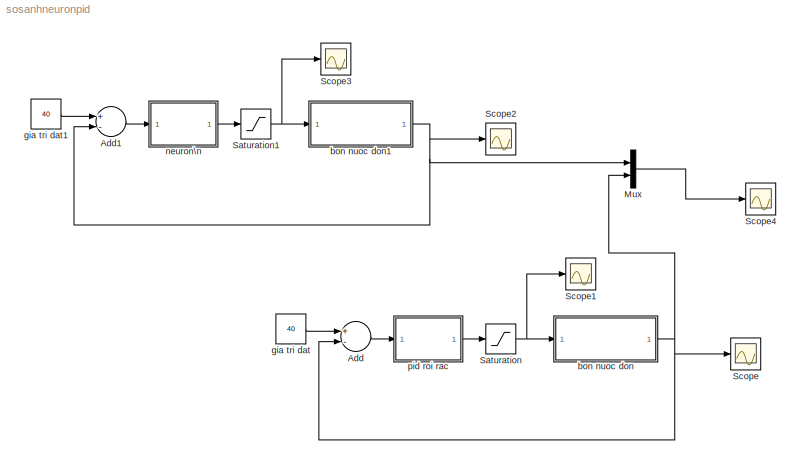
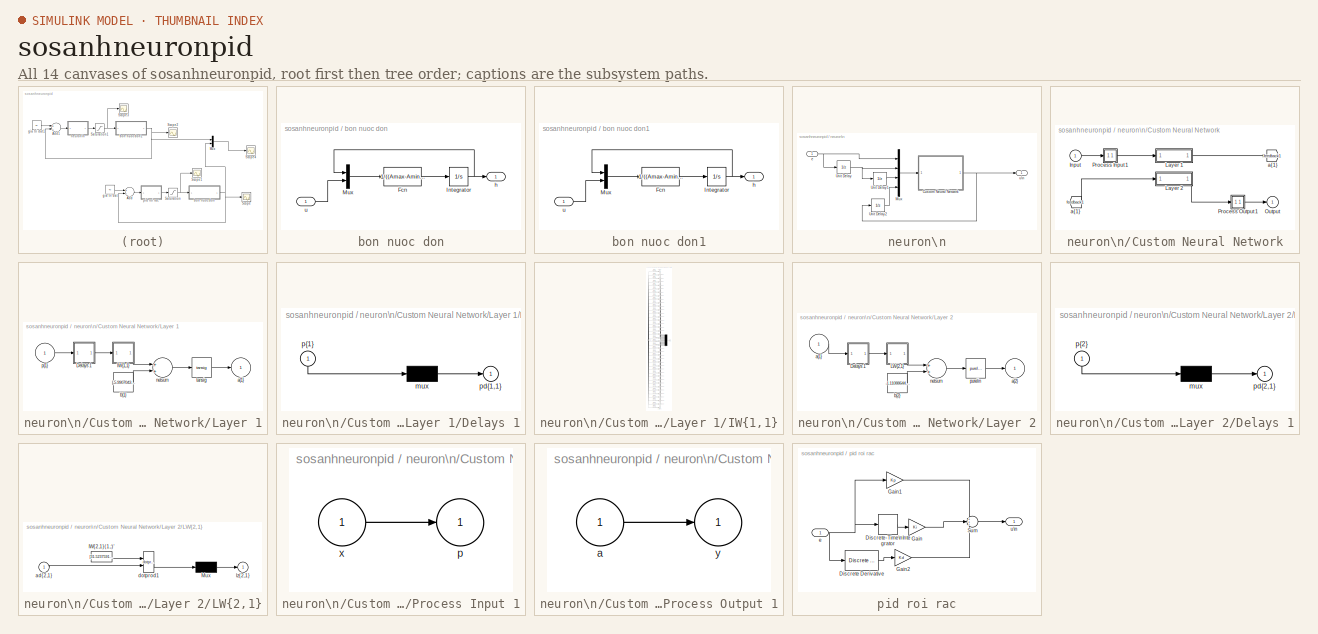
[diagram: thumbnail index - all 14 canvases of the model, root first then tree order]
MODEL sosanhneuronpid
KIND model
BLOCK [Sum] Add
  InputSameDT = off
  Inputs = +-
  OutDataTypeStr = Inherit: Inherit via internal rule
  Ports = [2, 1]
  SID = 124
  SaturateOnIntegerOverflow = off
BLOCK [Sum] Add1
  InputSameDT = off
  Inputs = +-
  OutDataTypeStr = Inherit: Inherit via internal rule
  Ports = [2, 1]
  SID = 145
  SaturateOnIntegerOverflow = off
BLOCK [Mux] Mux
  DisplayOption = bar
  Inputs = 2
  Ports = [2, 1]
  SID = 169
BLOCK [Saturate] Saturation
  InputPortMap = u0
  LowerLimit = 0
  Ports = [1, 1]
  SID = 125
  UpperLimit = 12
BLOCK [Saturate] Saturation1
  InputPortMap = u0
  LowerLimit = 0
  Ports = [1, 1]
  SID = 146
  UpperLimit = 12
BLOCK [Scope] Scope
  NumInputPorts = 1
  Ports = [1]
  SID = 126
  ScopeSpecificationString = Simulink.scopes.TimeScopeBlockCfg('CurrentConfiguration', extmgr.ConfigurationSet(extmgr.Configuration('Core','General UI',true),extmgr.Configuration('Core','Source UI',true),extmgr.Configuration('Sources','WiredSimulink',true,'DataLoggingVariableName','ScopeData2'),extmgr.Configuration('Visuals','Time Domain',true,'SerializedDisplays',{struct('MinYLimReal','6.25608','MaxYLimReal','43.69531','YLab...<+1400ch>
BLOCK [Scope] Scope1
  NumInputPorts = 1
  Ports = [1]
  SID = 127
  ScopeSpecificationString = Simulink.scopes.TimeScopeBlockCfg('CurrentConfiguration', extmgr.ConfigurationSet(extmgr.Configuration('Core','General UI',true),extmgr.Configuration('Core','Source UI',true),extmgr.Configuration('Sources','WiredSimulink',true,'DataLoggingVariableName','ScopeData1'),extmgr.Configuration('Visuals','Time Domain',true,'SerializedDisplays',{struct('MinYLimReal','-0.87011','MaxYLimReal','13.43001','YLa...<+1400ch>
BLOCK [Scope] Scope2
  NumInputPorts = 1
  Ports = [1]
  SID = 147
  ScopeSpecificationString = Simulink.scopes.TimeScopeBlockCfg('CurrentConfiguration', extmgr.ConfigurationSet(extmgr.Configuration('Core','General UI',true),extmgr.Configuration('Core','Source UI',true),extmgr.Configuration('Sources','WiredSimulink',true),extmgr.Configuration('Visuals','Time Domain',true,'SerializedDisplays',{struct('MinYLimReal','-4.97043','MaxYLimReal','44.73384','YLabelReal','','MinYLimMag','0.00000','Max...<+1364ch>
BLOCK [Scope] Scope3
  NumInputPorts = 1
  Ports = [1]
  SID = 148
  ScopeSpecificationString = Simulink.scopes.TimeScopeBlockCfg('CurrentConfiguration', extmgr.ConfigurationSet(extmgr.Configuration('Core','General UI',true),extmgr.Configuration('Core','Source UI',true),extmgr.Configuration('Sources','WiredSimulink',true,'DataLoggingVariableName','ScopeData3'),extmgr.Configuration('Visuals','Time Domain',true,'SerializedDisplays',{struct('MinYLimReal','-0.87011','MaxYLimReal','13.43001','YLa...<+1400ch>
BLOCK [Scope] Scope4
  NumInputPorts = 1
  Ports = [1]
  SID = 168
  ScopeSpecificationString = Simulink.scopes.TimeScopeBlockCfg('CurrentConfiguration', extmgr.ConfigurationSet(extmgr.Configuration('Core','General UI',true),extmgr.Configuration('Core','Source UI',true),extmgr.Configuration('Sources','WiredSimulink',true,'DataLoggingVariableName','ScopeData4'),extmgr.Configuration('Visuals','Time Domain',true,'SerializedDisplays',{struct('MinYLimReal','-4.99389','MaxYLimReal','44.94501','YLa...<+1418ch>
BLOCK [SubSystem] bon nuoc don
  Ports = [1, 1]
  RequestExecContextInheritance = off
  SID = 128
  Variant = off
BLOCK [Fcn] bon nuoc don/Fcn
  Expr = 1/((Amax-Amin)/hmax*u(1)+Amin)*(k*u(2)-CD*a*sqrt(2*981*u(1)))
  SID = 130
BLOCK [Integrator] bon nuoc don/Integrator
  InitialCondition = h_init
  Ports = [1, 1]
  SID = 131
BLOCK [Mux] bon nuoc don/Mux
  DisplayOption = bar
  Inputs = 2
  Ports = [2, 1]
  SID = 132
BLOCK [Outport] bon nuoc don/h
  IconDisplay = Port number
  SID = 133
BLOCK [Inport] bon nuoc don/u
  IconDisplay = Port number
  SID = 129
BLOCK [SubSystem] bon nuoc don1
  Ports = [1, 1]
  RequestExecContextInheritance = off
  SID = 149
  Variant = off
BLOCK [Fcn] bon nuoc don1/Fcn
  Expr = 1/((Amax-Amin)/hmax*u(1)+Amin)*(k*u(2)-CD*a*sqrt(2*981*u(1)))
  SID = 151
BLOCK [Integrator] bon nuoc don1/Integrator
  InitialCondition = h_init
  Ports = [1, 1]
  SID = 152
BLOCK [Mux] bon nuoc don1/Mux
  DisplayOption = bar
  Inputs = 2
  Ports = [2, 1]
  SID = 153
BLOCK [Outport] bon nuoc don1/h
  IconDisplay = Port number
  SID = 154
BLOCK [Inport] bon nuoc don1/u
  IconDisplay = Port number
  SID = 150
BLOCK [Constant] gia tri dat
  SID = 134
  Value = 40
BLOCK [Constant] gia tri dat1
  SID = 155
  Value = 40
BLOCK [SubSystem] neuron\n
  Ports = [1, 1]
  RequestExecContextInheritance = off
  SID = 156
  Variant = off
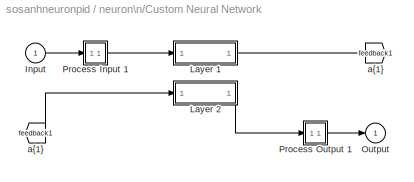
BLOCK [SubSystem] neuron\n/Custom Neural Network
  Ports = [1, 1]
  RequestExecContextInheritance = off
  SID = 291
  Variant = off
BLOCK [From] neuron\n/Custom Neural Network/ a{1} 
  GotoTag = feedback1
  SID = 293
BLOCK [Inport] neuron\n/Custom Neural Network/Input
  IconDisplay = Port number
  PortDimensions = 4
  SID = 292
  SampleTime = 0.1
BLOCK [SubSystem] neuron\n/Custom Neural Network/Layer 1
  Ports = [1, 1]
  RequestExecContextInheritance = off
  SID = 294
  Variant = off
BLOCK [SubSystem] neuron\n/Custom Neural Network/Layer 1/Delays 1
  Ports = [1, 1]
  RequestExecContextInheritance = off
  SID = 296
  Variant = off
BLOCK [Mux] neuron\n/Custom Neural Network/Layer 1/Delays 1/mux
  Inputs = 1
  Ports = [1, 1]
  SID = 298
BLOCK [Outport] neuron\n/Custom Neural Network/Layer 1/Delays 1/pd{1,1}
  IconDisplay = Port number
  SID = 299
BLOCK [Inport] neuron\n/Custom Neural Network/Layer 1/Delays 1/p{1}
  IconDisplay = Port number
  PortDimensions = 4
  SID = 297
  SampleTime = 0.1
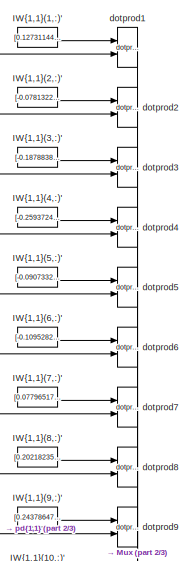
[diagram: neuron\n/Custom Neural Network/Layer 1/IW{1,1} - part 1/3, top center region]
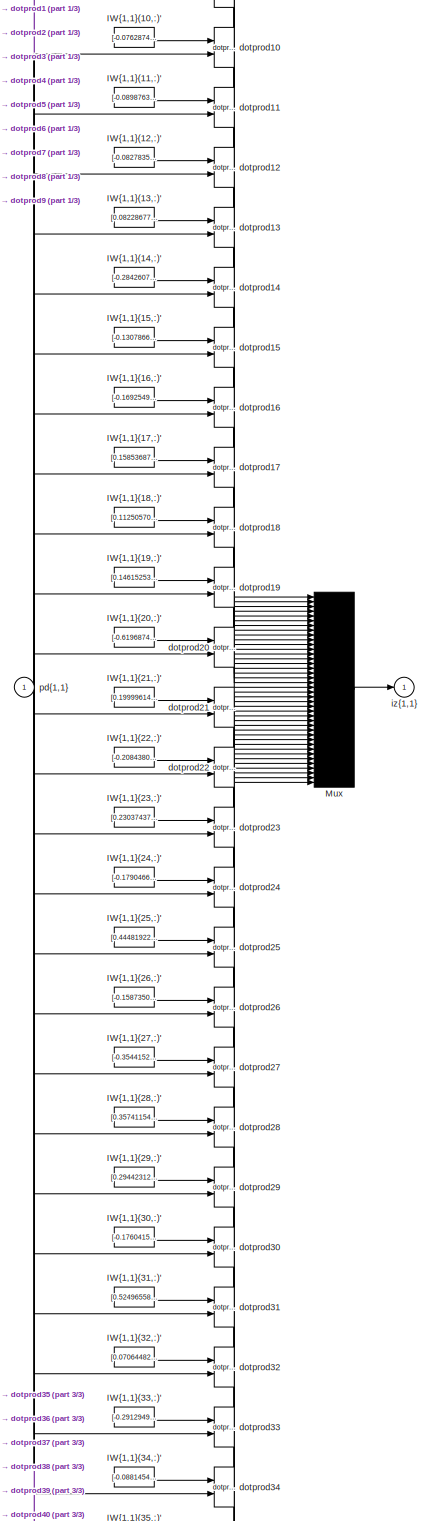
[diagram: neuron\n/Custom Neural Network/Layer 1/IW{1,1} - part 2/3, full width, middle band]
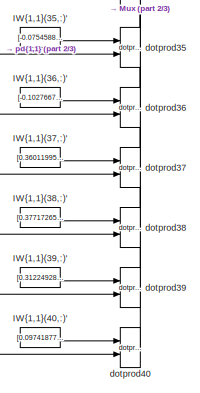
[diagram: neuron\n/Custom Neural Network/Layer 1/IW{1,1} - part 3/3, bottom center region]
BLOCK [SubSystem] neuron\n/Custom Neural Network/Layer 1/IW{1,1}
  Ports = [1, 1]
  RequestExecContextInheritance = off
  SID = 300
  Variant = off
BLOCK [Constant] neuron\n/Custom Neural Network/Layer 1/IW{1,1}/IW{1,1}(1,:)'
  SID = 302
  Value = [0.1273114426274164767693974908979726023972034454345703125;0.0003123724111336769588241624173718946622102521359920501708984375;0.00120134153832350304598464152405767890741117298603057861328125;-0.00101208542491713015219756410800755475065670907497406005859375]
BLOCK [Constant] neuron\n/Custom Neural Network/Layer 1/IW{1,1}/IW{1,1}(10,:)'
  SID = 303
  Value = [-0.07628744425891477443091304166955524124205112457275390625;0.0010549580932088021591186421943575624027289450168609619140625;-0.000686530404964672447305773506087689384003169834613800048828125;-0.00073994853950029820625899912300837968359701335430145263671875]
BLOCK [Constant] neuron\n/Custom Neural Network/Layer 1/IW{1,1}/IW{1,1}(11,:)'
  SID = 304
  Value = [-0.08987639868343412496987099302714341320097446441650390625;-0.0019991621904707651026511516789696543128229677677154541015625;-0.0131575245467723776771062915713628171943128108978271484375;0.000666793401476327061115634275978436562581919133663177490234375]
BLOCK [Constant] neuron\n/Custom Neural Network/Layer 1/IW{1,1}/IW{1,1}(12,:)'
  SID = 305
  Value = [-0.082783540558719892477057555879582650959491729736328125;0.01138108624482505985830993466834115679375827312469482421875;0.00533838902964545343465818660888544400222599506378173828125;-0.0036993336998410279725657545668582315556704998016357421875]
BLOCK [Constant] neuron\n/Custom Neural Network/Layer 1/IW{1,1}/IW{1,1}(13,:)'
  SID = 306
  Value = [0.08228677922101960973133571997095714323222637176513671875;-0.0030681138390867474831369410281922682770527899265289306640625;-0.007060652133798321107571727139884387725032866001129150390625;0.003340268028398739492967894904040804249234497547149658203125]
BLOCK [Constant] neuron\n/Custom Neural Network/Layer 1/IW{1,1}/IW{1,1}(14,:)'
  SID = 307
  Value = [-0.284260769756084996640055351235787384212017059326171875;-0.055060384302078511919997794166192761622369289398193359375;-0.015413201362474225619703105394364683888852596282958984375;0.00822931232592213728060936972497074748389422893524169921875]
BLOCK [Constant] neuron\n/Custom Neural Network/Layer 1/IW{1,1}/IW{1,1}(15,:)'
  SID = 308
  Value = [-0.1307866278465809328768187924652011133730411529541015625;-0.04084915900982873104840820133176748640835285186767578125;0.024595539932477185340875536212479346431791782379150390625;0.00680315955122640265984035323754142154939472675323486328125]
BLOCK [Constant] neuron\n/Custom Neural Network/Layer 1/IW{1,1}/IW{1,1}(16,:)'
  SID = 309
  Value = [-0.1692549248696585129092540000783628784120082855224609375;-0.00147281693163119043431252830345101756392978131771087646484375;0.005108998786250083280757738890542896115221083164215087890625;-0.0015097696724732869062723938924364119884558022022247314453125]
BLOCK [Constant] neuron\n/Custom Neural Network/Layer 1/IW{1,1}/IW{1,1}(17,:)'
  SID = 310
  Value = [0.1585368764920416506658540356511366553604602813720703125;0.039607984978468672998541677543471450917422771453857421875;0.000563873862649605828330223733502180039067752659320831298828125;-0.003206759187405548543192690402747757616452872753143310546875]
BLOCK [Constant] neuron\n/Custom Neural Network/Layer 1/IW{1,1}/IW{1,1}(18,:)'
  SID = 311
  Value = [0.1125057009768284654871450811697286553680896759033203125;-0.05780601771538897148960955973961972631514072418212890625;-0.00803936361979023204893390897041172138415277004241943359375;0.007322040623557120146702725804743749904446303844451904296875]
BLOCK [Constant] neuron\n/Custom Neural Network/Layer 1/IW{1,1}/IW{1,1}(19,:)'
  SID = 312
  Value = [0.146152534618964213830594189857947640120983123779296875;-0.0083842922623848063767848515226432937197387218475341796875;-0.01067832079477695587932384313489819760434329509735107421875;0.006051709035913674546158791400785048608668148517608642578125]
BLOCK [Constant] neuron\n/Custom Neural Network/Layer 1/IW{1,1}/IW{1,1}(2,:)'
  SID = 313
  Value = [-0.07813229340453876903271890341784455813467502593994140625;-0.0019319710847143117295188208260015017003752291202545166015625;0.0033099449036420353249809966911243463982827961444854736328125;0.00116231693934889753795636213595798835740424692630767822265625]
BLOCK [Constant] neuron\n/Custom Neural Network/Layer 1/IW{1,1}/IW{1,1}(20,:)'
  SID = 314
  Value = [-0.61968743168989648406608239383785985410213470458984375;-0.1041203141514064622885626931747538037598133087158203125;-0.039123085108022724598608732549109845422208309173583984375;0.00895964309187150843849511971939136856235563755035400390625]
BLOCK [Constant] neuron\n/Custom Neural Network/Layer 1/IW{1,1}/IW{1,1}(21,:)'
  SID = 315
  Value = [0.19999614067988857879498709735344164073467254638671875;-0.0073611805264682354799088415120422723703086376190185546875;-0.01305535480411303302095138434424370643682777881622314453125;0.00481904776633939983809806761883010040037333965301513671875]
BLOCK [Constant] neuron\n/Custom Neural Network/Layer 1/IW{1,1}/IW{1,1}(22,:)'
  SID = 316
  Value = [-0.2084380749767481832979143518969067372381687164306640625;-0.021745209458013829706413133635578560642898082733154296875;-0.00724827415273839557874335781662011868320405483245849609375;-0.000516414440543924778241613449125679835560731589794158935546875]
BLOCK [Constant] neuron\n/Custom Neural Network/Layer 1/IW{1,1}/IW{1,1}(23,:)'
  SID = 317
  Value = [0.2303743767537962394698070056620053946971893310546875;0.00596718555911611957254248039816957316361367702484130859375;0.0110870394139882255668538846293813548982143402099609375;-0.00053502478871453123220047753960670888773165643215179443359375]
BLOCK [Constant] neuron\n/Custom Neural Network/Layer 1/IW{1,1}/IW{1,1}(24,:)'
  SID = 318
  Value = [-0.1790466189665697316346637535389163531363010406494140625;0.0095275385107931702399763906896623666398227214813232421875;0.00140707123615769320000568054496170589118264615535736083984375;-0.003431731352337131189800256692024049698375165462493896484375]
BLOCK [Constant] neuron\n/Custom Neural Network/Layer 1/IW{1,1}/IW{1,1}(25,:)'
  SID = 319
  Value = [0.44481922680123153757136833519325591623783111572265625;0.00606306918261245546275528539581500808708369731903076171875;0.000273048900767559519185689875797606873675249516963958740234375;0.00927845071454137283739616037792075076140463352203369140625]
BLOCK [Constant] neuron\n/Custom Neural Network/Layer 1/IW{1,1}/IW{1,1}(26,:)'
  SID = 320
  Value = [-0.1587350451873286438786436747250263579189777374267578125;0.043196481476732613569158303334916126914322376251220703125;0.0009437555096115548929069927197588185663335025310516357421875;-0.007076664893750536124150674055499621317721903324127197265625]
BLOCK [Constant] neuron\n/Custom Neural Network/Layer 1/IW{1,1}/IW{1,1}(27,:)'
  SID = 321
  Value = [-0.3544152115504204392237852516700513660907745361328125;0.014384578540346505681757349748295382596552371978759765625;-0.003323920168754234717722884084878387511707842350006103515625;0.00552242360168995159719340648507568403147161006927490234375]
BLOCK [Constant] neuron\n/Custom Neural Network/Layer 1/IW{1,1}/IW{1,1}(28,:)'
  SID = 322
  Value = [0.35741154248293038886430394995841197669506072998046875;0.0592804902753930329506459884214564226567745208740234375;0.0103845066962010186550902091084935818798840045928955078125;-0.0184779491729064847260755044544566771946847438812255859375]
BLOCK [Constant] neuron\n/Custom Neural Network/Layer 1/IW{1,1}/IW{1,1}(29,:)'
  SID = 323
  Value = [0.294423121634710793781408710856339894235134124755859375;0.0021497409932967150893168284397916067973710596561431884765625;0.0022403844775366345797029676845113499439321458339691162109375;-0.004981772300028683951589325573650057776831090450286865234375]
BLOCK [Constant] neuron\n/Custom Neural Network/Layer 1/IW{1,1}/IW{1,1}(3,:)'
  SID = 324
  Value = [-0.1878838629129677417761712376886862330138683319091796875;0.01468736256932166688027319167986206593923270702362060546875;0.0029604226912098526892924699183140546665526926517486572265625;-0.000554503863042488305025445871621059268363751471042633056640625]
BLOCK [Constant] neuron\n/Custom Neural Network/Layer 1/IW{1,1}/IW{1,1}(30,:)'
  SID = 325
  Value = [-0.1760415476330757511558289252207032404839992523193359375;0.02182567515595680573969872284578741528093814849853515625;0.00413425604090632108078562367836639168672263622283935546875;-0.0037025812602967905599882225686769743333570659160614013671875]
BLOCK [Constant] neuron\n/Custom Neural Network/Layer 1/IW{1,1}/IW{1,1}(31,:)'
  SID = 326
  Value = [0.5249655882187067579280892459792084991931915283203125;0.019018872171017324468333953291221405379474163055419921875;0.004808253060647817676842574741158387041650712490081787109375;-0.01026827673654269988678944258708725101314485073089599609375]
BLOCK [Constant] neuron\n/Custom Neural Network/Layer 1/IW{1,1}/IW{1,1}(32,:)'
  SID = 327
  Value = [0.0706448208694954449260450246583786793053150177001953125;-0.01901053181692245741540858716689399443566799163818359375;-0.0014520159304337479193314219827470878954045474529266357421875;0.0032278062987225000259050577966490891412831842899322509765625]
BLOCK [Constant] neuron\n/Custom Neural Network/Layer 1/IW{1,1}/IW{1,1}(33,:)'
  SID = 328
  Value = [-0.29129490697134807764001607210957445204257965087890625;0.0029305112115791225047001233861010405234992504119873046875;0.005914452474492737366063010995276272296905517578125;0.00529938740597349529359849640286483918316662311553955078125]
BLOCK [Constant] neuron\n/Custom Neural Network/Layer 1/IW{1,1}/IW{1,1}(34,:)'
  SID = 329
  Value = [-0.088145473855231692983380753503297455608844757080078125;-0.02165004980072023077486420561399427242577075958251953125;-0.00659187598421066313358895882856813841499388217926025390625;0.0008865348518362734138442693421211515669710934162139892578125]
BLOCK [Constant] neuron\n/Custom Neural Network/Layer 1/IW{1,1}/IW{1,1}(35,:)'
  SID = 330
  Value = [-0.07545887164586446982372791580928605981171131134033203125;0.0378700706488402649707580849280930124223232269287109375;0.000561095934478140980113114455463119156775064766407012939453125;-0.005043777966669336747240759422084011021070182323455810546875]
BLOCK [Constant] neuron\n/Custom Neural Network/Layer 1/IW{1,1}/IW{1,1}(36,:)'
  SID = 331
  Value = [-0.10276678009956773107713701165266684256494045257568359375;0.005944017363276317238163226619462875532917678356170654296875;0.00066922403937130585903358959143361062160693109035491943359375;-0.00209482819803567810179600883202510885894298553466796875]
BLOCK [Constant] neuron\n/Custom Neural Network/Layer 1/IW{1,1}/IW{1,1}(37,:)'
  SID = 332
  Value = [0.360119950010166167686520566348917782306671142578125;-0.0252840320805257472158711351539750467054545879364013671875;0.00070204643172777788338867477335725197917781770229339599609375;0.0004826002940941715086721475191922081648954190313816070556640625]
BLOCK [Constant] neuron\n/Custom Neural Network/Layer 1/IW{1,1}/IW{1,1}(38,:)'
  SID = 333
  Value = [0.377172652639159611265284866021829657256603240966796875;-1.3451732710521486779953193035908043384552001953125;0.054268693986348988389512015828586299903690814971923828125;0.217284989984417753472456524832523427903652191162109375]
BLOCK [Constant] neuron\n/Custom Neural Network/Layer 1/IW{1,1}/IW{1,1}(39,:)'
  SID = 334
  Value = [0.3122492849645623902432589602540247142314910888671875;0.034189906198741744358660099578628432936966419219970703125;0.00156000593861937313956700368322572103352285921573638916015625;-0.01025828382720714478104628852861424093134701251983642578125]
BLOCK [Constant] neuron\n/Custom Neural Network/Layer 1/IW{1,1}/IW{1,1}(4,:)'
  SID = 335
  Value = [-0.259372477162614634149662151685333810746669769287109375;0.02760412242880949662549028289504349231719970703125;-0.00930455327128007318726599095271012629382312297821044921875;-0.01087304478855837842898868217389463097788393497467041015625]
BLOCK [Constant] neuron\n/Custom Neural Network/Layer 1/IW{1,1}/IW{1,1}(40,:)'
  SID = 336
  Value = [0.097418776573087229042613444107701070606708526611328125;-0.0003942797602735221272098053990617927411221899092197418212890625;0.004432096649793347553636380098396330140531063079833984375;-9.091033116526297283392643588939563414896838366985321044921875e-05]
BLOCK [Constant] neuron\n/Custom Neural Network/Layer 1/IW{1,1}/IW{1,1}(5,:)'
  SID = 337
  Value = [-0.09073320907224947939884174274993711151182651519775390625;-0.03406537452992099146431570488857687450945377349853515625;-0.008027592350893286710089569169213064014911651611328125;0.005745329699917550540788635515809801290743052959442138671875]
BLOCK [Constant] neuron\n/Custom Neural Network/Layer 1/IW{1,1}/IW{1,1}(6,:)'
  SID = 338
  Value = [-0.10952826100248445884144388173808692954480648040771484375;-0.005532947662351728017327001651892715017311275005340576171875;0.0034825431357048647167118371470451165805570781230926513671875;-0.0012031253020874459712385995402428306988440454006195068359375]
BLOCK [Constant] neuron\n/Custom Neural Network/Layer 1/IW{1,1}/IW{1,1}(7,:)'
  SID = 339
  Value = [0.077965178103800936160183709944249130785465240478515625;0.00465429078882916534565250543664660654030740261077880859375;0.0012067003626775661510872605930444478872232139110565185546875;-0.00020673578287521644151862598715041485775145702064037322998046875]
BLOCK [Constant] neuron\n/Custom Neural Network/Layer 1/IW{1,1}/IW{1,1}(8,:)'
  SID = 340
  Value = [0.202182353125477887179073377410531975328922271728515625;0.0090456720634544025838597036681676399894058704376220703125;-0.0030256302634215806283968230872005733544938266277313232421875;-0.00478486107424762156792308331887397798709571361541748046875]
BLOCK [Constant] neuron\n/Custom Neural Network/Layer 1/IW{1,1}/IW{1,1}(9,:)'
  SID = 341
  Value = [0.2437864772210771857618993863070500083267688751220703125;0.11103947383537700333011599695964832790195941925048828125;0.013250392548958343785781011092694825492799282073974609375;-0.0223023684125226960561771960556143312714993953704833984375]
BLOCK [Mux] neuron\n/Custom Neural Network/Layer 1/IW{1,1}/Mux
  Inputs = 40
  Ports = [40, 1]
  SID = 342
BLOCK [Reference] neuron\n/Custom Neural Network/Layer 1/IW{1,1}/dotprod1  REF=neural/Weight Functions/dotprod
  Ports = [2, 1]
  SID = 343
  SourceBlock = neural/Weight Functions/dotprod
  SourceProductBaseCode = NN
  SourceProductName = Neural Network Toolbox
  SourceType = DOTPROD
BLOCK [Reference] neuron\n/Custom Neural Network/Layer 1/IW{1,1}/dotprod10  REF=neural/Weight Functions/dotprod
  Ports = [2, 1]
  SID = 344
  SourceBlock = neural/Weight Functions/dotprod
  SourceProductBaseCode = NN
  SourceProductName = Neural Network Toolbox
  SourceType = DOTPROD
BLOCK [Reference] neuron\n/Custom Neural Network/Layer 1/IW{1,1}/dotprod11  REF=neural/Weight Functions/dotprod
  Ports = [2, 1]
  SID = 345
  SourceBlock = neural/Weight Functions/dotprod
  SourceProductBaseCode = NN
  SourceProductName = Neural Network Toolbox
  SourceType = DOTPROD
BLOCK [Reference] neuron\n/Custom Neural Network/Layer 1/IW{1,1}/dotprod12  REF=neural/Weight Functions/dotprod
  Ports = [2, 1]
  SID = 346
  SourceBlock = neural/Weight Functions/dotprod
  SourceProductBaseCode = NN
  SourceProductName = Neural Network Toolbox
  SourceType = DOTPROD
BLOCK [Reference] neuron\n/Custom Neural Network/Layer 1/IW{1,1}/dotprod13  REF=neural/Weight Functions/dotprod
  Ports = [2, 1]
  SID = 347
  SourceBlock = neural/Weight Functions/dotprod
  SourceProductBaseCode = NN
  SourceProductName = Neural Network Toolbox
  SourceType = DOTPROD
BLOCK [Reference] neuron\n/Custom Neural Network/Layer 1/IW{1,1}/dotprod14  REF=neural/Weight Functions/dotprod
  Ports = [2, 1]
  SID = 348
  SourceBlock = neural/Weight Functions/dotprod
  SourceProductBaseCode = NN
  SourceProductName = Neural Network Toolbox
  SourceType = DOTPROD
BLOCK [Reference] neuron\n/Custom Neural Network/Layer 1/IW{1,1}/dotprod15  REF=neural/Weight Functions/dotprod
  Ports = [2, 1]
  SID = 349
  SourceBlock = neural/Weight Functions/dotprod
  SourceProductBaseCode = NN
  SourceProductName = Neural Network Toolbox
  SourceType = DOTPROD
BLOCK [Reference] neuron\n/Custom Neural Network/Layer 1/IW{1,1}/dotprod16  REF=neural/Weight Functions/dotprod
  Ports = [2, 1]
  SID = 350
  SourceBlock = neural/Weight Functions/dotprod
  SourceProductBaseCode = NN
  SourceProductName = Neural Network Toolbox
  SourceType = DOTPROD
BLOCK [Reference] neuron\n/Custom Neural Network/Layer 1/IW{1,1}/dotprod17  REF=neural/Weight Functions/dotprod
  Ports = [2, 1]
  SID = 351
  SourceBlock = neural/Weight Functions/dotprod
  SourceProductBaseCode = NN
  SourceProductName = Neural Network Toolbox
  SourceType = DOTPROD
BLOCK [Reference] neuron\n/Custom Neural Network/Layer 1/IW{1,1}/dotprod18  REF=neural/Weight Functions/dotprod
  Ports = [2, 1]
  SID = 352
  SourceBlock = neural/Weight Functions/dotprod
  SourceProductBaseCode = NN
  SourceProductName = Neural Network Toolbox
  SourceType = DOTPROD
BLOCK [Reference] neuron\n/Custom Neural Network/Layer 1/IW{1,1}/dotprod19  REF=neural/Weight Functions/dotprod
  Ports = [2, 1]
  SID = 353
  SourceBlock = neural/Weight Functions/dotprod
  SourceProductBaseCode = NN
  SourceProductName = Neural Network Toolbox
  SourceType = DOTPROD
BLOCK [Reference] neuron\n/Custom Neural Network/Layer 1/IW{1,1}/dotprod2  REF=neural/Weight Functions/dotprod
  Ports = [2, 1]
  SID = 354
  SourceBlock = neural/Weight Functions/dotprod
  SourceProductBaseCode = NN
  SourceProductName = Neural Network Toolbox
  SourceType = DOTPROD
BLOCK [Reference] neuron\n/Custom Neural Network/Layer 1/IW{1,1}/dotprod20  REF=neural/Weight Functions/dotprod
  Ports = [2, 1]
  SID = 355
  SourceBlock = neural/Weight Functions/dotprod
  SourceProductBaseCode = NN
  SourceProductName = Neural Network Toolbox
  SourceType = DOTPROD
BLOCK [Reference] neuron\n/Custom Neural Network/Layer 1/IW{1,1}/dotprod21  REF=neural/Weight Functions/dotprod
  Ports = [2, 1]
  SID = 356
  SourceBlock = neural/Weight Functions/dotprod
  SourceProductBaseCode = NN
  SourceProductName = Neural Network Toolbox
  SourceType = DOTPROD
BLOCK [Reference] neuron\n/Custom Neural Network/Layer 1/IW{1,1}/dotprod22  REF=neural/Weight Functions/dotprod
  Ports = [2, 1]
  SID = 357
  SourceBlock = neural/Weight Functions/dotprod
  SourceProductBaseCode = NN
  SourceProductName = Neural Network Toolbox
  SourceType = DOTPROD
BLOCK [Reference] neuron\n/Custom Neural Network/Layer 1/IW{1,1}/dotprod23  REF=neural/Weight Functions/dotprod
  Ports = [2, 1]
  SID = 358
  SourceBlock = neural/Weight Functions/dotprod
  SourceProductBaseCode = NN
  SourceProductName = Neural Network Toolbox
  SourceType = DOTPROD
BLOCK [Reference] neuron\n/Custom Neural Network/Layer 1/IW{1,1}/dotprod24  REF=neural/Weight Functions/dotprod
  Ports = [2, 1]
  SID = 359
  SourceBlock = neural/Weight Functions/dotprod
  SourceProductBaseCode = NN
  SourceProductName = Neural Network Toolbox
  SourceType = DOTPROD
BLOCK [Reference] neuron\n/Custom Neural Network/Layer 1/IW{1,1}/dotprod25  REF=neural/Weight Functions/dotprod
  Ports = [2, 1]
  SID = 360
  SourceBlock = neural/Weight Functions/dotprod
  SourceProductBaseCode = NN
  SourceProductName = Neural Network Toolbox
  SourceType = DOTPROD
BLOCK [Reference] neuron\n/Custom Neural Network/Layer 1/IW{1,1}/dotprod26  REF=neural/Weight Functions/dotprod
  Ports = [2, 1]
  SID = 361
  SourceBlock = neural/Weight Functions/dotprod
  SourceProductBaseCode = NN
  SourceProductName = Neural Network Toolbox
  SourceType = DOTPROD
BLOCK [Reference] neuron\n/Custom Neural Network/Layer 1/IW{1,1}/dotprod27  REF=neural/Weight Functions/dotprod
  Ports = [2, 1]
  SID = 362
  SourceBlock = neural/Weight Functions/dotprod
  SourceProductBaseCode = NN
  SourceProductName = Neural Network Toolbox
  SourceType = DOTPROD
BLOCK [Reference] neuron\n/Custom Neural Network/Layer 1/IW{1,1}/dotprod28  REF=neural/Weight Functions/dotprod
  Ports = [2, 1]
  SID = 363
  SourceBlock = neural/Weight Functions/dotprod
  SourceProductBaseCode = NN
  SourceProductName = Neural Network Toolbox
  SourceType = DOTPROD
BLOCK [Reference] neuron\n/Custom Neural Network/Layer 1/IW{1,1}/dotprod29  REF=neural/Weight Functions/dotprod
  Ports = [2, 1]
  SID = 364
  SourceBlock = neural/Weight Functions/dotprod
  SourceProductBaseCode = NN
  SourceProductName = Neural Network Toolbox
  SourceType = DOTPROD
BLOCK [Reference] neuron\n/Custom Neural Network/Layer 1/IW{1,1}/dotprod3  REF=neural/Weight Functions/dotprod
  Ports = [2, 1]
  SID = 365
  SourceBlock = neural/Weight Functions/dotprod
  SourceProductBaseCode = NN
  SourceProductName = Neural Network Toolbox
  SourceType = DOTPROD
BLOCK [Reference] neuron\n/Custom Neural Network/Layer 1/IW{1,1}/dotprod30  REF=neural/Weight Functions/dotprod
  Ports = [2, 1]
  SID = 366
  SourceBlock = neural/Weight Functions/dotprod
  SourceProductBaseCode = NN
  SourceProductName = Neural Network Toolbox
  SourceType = DOTPROD
BLOCK [Reference] neuron\n/Custom Neural Network/Layer 1/IW{1,1}/dotprod31  REF=neural/Weight Functions/dotprod
  Ports = [2, 1]
  SID = 367
  SourceBlock = neural/Weight Functions/dotprod
  SourceProductBaseCode = NN
  SourceProductName = Neural Network Toolbox
  SourceType = DOTPROD
BLOCK [Reference] neuron\n/Custom Neural Network/Layer 1/IW{1,1}/dotprod32  REF=neural/Weight Functions/dotprod
  Ports = [2, 1]
  SID = 368
  SourceBlock = neural/Weight Functions/dotprod
  SourceProductBaseCode = NN
  SourceProductName = Neural Network Toolbox
  SourceType = DOTPROD
BLOCK [Reference] neuron\n/Custom Neural Network/Layer 1/IW{1,1}/dotprod33  REF=neural/Weight Functions/dotprod
  Ports = [2, 1]
  SID = 369
  SourceBlock = neural/Weight Functions/dotprod
  SourceProductBaseCode = NN
  SourceProductName = Neural Network Toolbox
  SourceType = DOTPROD
BLOCK [Reference] neuron\n/Custom Neural Network/Layer 1/IW{1,1}/dotprod34  REF=neural/Weight Functions/dotprod
  Ports = [2, 1]
  SID = 370
  SourceBlock = neural/Weight Functions/dotprod
  SourceProductBaseCode = NN
  SourceProductName = Neural Network Toolbox
  SourceType = DOTPROD
BLOCK [Reference] neuron\n/Custom Neural Network/Layer 1/IW{1,1}/dotprod35  REF=neural/Weight Functions/dotprod
  Ports = [2, 1]
  SID = 371
  SourceBlock = neural/Weight Functions/dotprod
  SourceProductBaseCode = NN
  SourceProductName = Neural Network Toolbox
  SourceType = DOTPROD
BLOCK [Reference] neuron\n/Custom Neural Network/Layer 1/IW{1,1}/dotprod36  REF=neural/Weight Functions/dotprod
  Ports = [2, 1]
  SID = 372
  SourceBlock = neural/Weight Functions/dotprod
  SourceProductBaseCode = NN
  SourceProductName = Neural Network Toolbox
  SourceType = DOTPROD
BLOCK [Reference] neuron\n/Custom Neural Network/Layer 1/IW{1,1}/dotprod37  REF=neural/Weight Functions/dotprod
  Ports = [2, 1]
  SID = 373
  SourceBlock = neural/Weight Functions/dotprod
  SourceProductBaseCode = NN
  SourceProductName = Neural Network Toolbox
  SourceType = DOTPROD
BLOCK [Reference] neuron\n/Custom Neural Network/Layer 1/IW{1,1}/dotprod38  REF=neural/Weight Functions/dotprod
  Ports = [2, 1]
  SID = 374
  SourceBlock = neural/Weight Functions/dotprod
  SourceProductBaseCode = NN
  SourceProductName = Neural Network Toolbox
  SourceType = DOTPROD
BLOCK [Reference] neuron\n/Custom Neural Network/Layer 1/IW{1,1}/dotprod39  REF=neural/Weight Functions/dotprod
  Ports = [2, 1]
  SID = 375
  SourceBlock = neural/Weight Functions/dotprod
  SourceProductBaseCode = NN
  SourceProductName = Neural Network Toolbox
  SourceType = DOTPROD
BLOCK [Reference] neuron\n/Custom Neural Network/Layer 1/IW{1,1}/dotprod4  REF=neural/Weight Functions/dotprod
  Ports = [2, 1]
  SID = 376
  SourceBlock = neural/Weight Functions/dotprod
  SourceProductBaseCode = NN
  SourceProductName = Neural Network Toolbox
  SourceType = DOTPROD
BLOCK [Reference] neuron\n/Custom Neural Network/Layer 1/IW{1,1}/dotprod40  REF=neural/Weight Functions/dotprod
  Ports = [2, 1]
  SID = 377
  SourceBlock = neural/Weight Functions/dotprod
  SourceProductBaseCode = NN
  SourceProductName = Neural Network Toolbox
  SourceType = DOTPROD
BLOCK [Reference] neuron\n/Custom Neural Network/Layer 1/IW{1,1}/dotprod5  REF=neural/Weight Functions/dotprod
  Ports = [2, 1]
  SID = 378
  SourceBlock = neural/Weight Functions/dotprod
  SourceProductBaseCode = NN
  SourceProductName = Neural Network Toolbox
  SourceType = DOTPROD
BLOCK [Reference] neuron\n/Custom Neural Network/Layer 1/IW{1,1}/dotprod6  REF=neural/Weight Functions/dotprod
  Ports = [2, 1]
  SID = 379
  SourceBlock = neural/Weight Functions/dotprod
  SourceProductBaseCode = NN
  SourceProductName = Neural Network Toolbox
  SourceType = DOTPROD
BLOCK [Reference] neuron\n/Custom Neural Network/Layer 1/IW{1,1}/dotprod7  REF=neural/Weight Functions/dotprod
  Ports = [2, 1]
  SID = 380
  SourceBlock = neural/Weight Functions/dotprod
  SourceProductBaseCode = NN
  SourceProductName = Neural Network Toolbox
  SourceType = DOTPROD
BLOCK [Reference] neuron\n/Custom Neural Network/Layer 1/IW{1,1}/dotprod8  REF=neural/Weight Functions/dotprod
  Ports = [2, 1]
  SID = 381
  SourceBlock = neural/Weight Functions/dotprod
  SourceProductBaseCode = NN
  SourceProductName = Neural Network Toolbox
  SourceType = DOTPROD
BLOCK [Reference] neuron\n/Custom Neural Network/Layer 1/IW{1,1}/dotprod9  REF=neural/Weight Functions/dotprod
  Ports = [2, 1]
  SID = 382
  SourceBlock = neural/Weight Functions/dotprod
  SourceProductBaseCode = NN
  SourceProductName = Neural Network Toolbox
  SourceType = DOTPROD
BLOCK [Outport] neuron\n/Custom Neural Network/Layer 1/IW{1,1}/iz{1,1}
  IconDisplay = Port number
  SID = 383
BLOCK [Inport] neuron\n/Custom Neural Network/Layer 1/IW{1,1}/pd{1,1}
  IconDisplay = Port number
  PortDimensions = 4
  SID = 301
  SampleTime = 0.1
BLOCK [Outport] neuron\n/Custom Neural Network/Layer 1/a{1}
  IconDisplay = Port number
  InitialOutput = [0;0;0;0;0;0;0;0;0;0;0;0;0;0;0;0;0;0;0;0;0;0;0;0;0;0;0;0;0;0;0;0;0;0;0;0;0;0;0;0]
  SID = 387
BLOCK [Constant] neuron\n/Custom Neural Network/Layer 1/b{1}
  SID = 384
  Value = [-5.990704389631115844849773566238582134246826171875;-3.44891891024988606062606777413748204708099365234375;6.959461258793613325224214349873363971710205078125;-4.51396616263090155740655973204411566257476806640625;-3.55220559916193057148348088958300650119781494140625;2.570134910866672672824506662436760962009429931640625;2.527235966907875219789048060192726552486419677734375;-5.88862430557125371421989...<+1738ch>
BLOCK [Sum] neuron\n/Custom Neural Network/Layer 1/netsum
  Inputs = 2
  Ports = [2, 1]
  SID = 385
BLOCK [Inport] neuron\n/Custom Neural Network/Layer 1/p{1}
  IconDisplay = Port number
  PortDimensions = 4
  SID = 295
  SampleTime = 0.1
BLOCK [Reference] neuron\n/Custom Neural Network/Layer 1/tansig  REF=neural/Transfer Functions/tansig
  Ports = [1, 1]
  SID = 386
  SourceBlock = neural/Transfer Functions/tansig
  SourceProductBaseCode = NN
  SourceProductName = Neural Network Toolbox
  SourceType = TANSIG
BLOCK [SubSystem] neuron\n/Custom Neural Network/Layer 2
  Ports = [1, 1]
  RequestExecContextInheritance = off
  SID = 388
  Variant = off
BLOCK [SubSystem] neuron\n/Custom Neural Network/Layer 2/Delays 1
  Ports = [1, 1]
  RequestExecContextInheritance = off
  SID = 390
  Variant = off
BLOCK [Mux] neuron\n/Custom Neural Network/Layer 2/Delays 1/mux
  Inputs = 1
  Ports = [1, 1]
  SID = 392
BLOCK [Outport] neuron\n/Custom Neural Network/Layer 2/Delays 1/pd{2,1}
  IconDisplay = Port number
  SID = 393
BLOCK [Inport] neuron\n/Custom Neural Network/Layer 2/Delays 1/p{2}
  IconDisplay = Port number
  PortDimensions = 40
  SID = 391
  SampleTime = 0.1
BLOCK [SubSystem] neuron\n/Custom Neural Network/Layer 2/LW{2,1}
  Ports = [1, 1]
  RequestExecContextInheritance = off
  SID = 394
  Variant = off
BLOCK [Constant] neuron\n/Custom Neural Network/Layer 2/LW{2,1}/IW{2,1}(1,:)'
  SID = 396
  Value = [31.52375916179162373964572907425463199615478515625;-17.615143984245928976406503352336585521697998046875;-8.0799457618650851742359009222127497196197509765625;-4.77454029561602322218050176161341369152069091796875;-10.029441645389084669659496285021305084228515625;-15.4139556424359565056647625169716775417327880859375;4.82804533491463327976589425816200673580169677734375;9.41874617182759976685701985843...<+1703ch>
BLOCK [Mux] neuron\n/Custom Neural Network/Layer 2/LW{2,1}/Mux
  Inputs = 1
  Ports = [1, 1]
  SID = 397
BLOCK [Inport] neuron\n/Custom Neural Network/Layer 2/LW{2,1}/ad{2,1}
  IconDisplay = Port number
  PortDimensions = 40
  SID = 395
  SampleTime = 0.1
BLOCK [Reference] neuron\n/Custom Neural Network/Layer 2/LW{2,1}/dotprod1  REF=neural/Weight Functions/dotprod
  Ports = [2, 1]
  SID = 398
  SourceBlock = neural/Weight Functions/dotprod
  SourceProductBaseCode = NN
  SourceProductName = Neural Network Toolbox
  SourceType = DOTPROD
BLOCK [Outport] neuron\n/Custom Neural Network/Layer 2/LW{2,1}/lz{2,1}
  IconDisplay = Port number
  SID = 399
BLOCK [Inport] neuron\n/Custom Neural Network/Layer 2/a{1} 
  IconDisplay = Port number
  PortDimensions = 40
  SID = 389
  SampleTime = 0.1
BLOCK [Outport] neuron\n/Custom Neural Network/Layer 2/a{2}
  IconDisplay = Port number
  InitialOutput = 0
  SID = 403
BLOCK [Constant] neuron\n/Custom Neural Network/Layer 2/b{2}
  SID = 400
  Value = -1.1108864419538040380075472057797014713287353515625
BLOCK [Sum] neuron\n/Custom Neural Network/Layer 2/netsum
  Inputs = 2
  Ports = [2, 1]
  SID = 401
BLOCK [Reference] neuron\n/Custom Neural Network/Layer 2/purelin  REF=neural/Transfer Functions/purelin
  Ports = [1, 1]
  SID = 402
  SourceBlock = neural/Transfer Functions/purelin
  SourceProductBaseCode = NN
  SourceProductName = Neural Network Toolbox
  SourceType = PURELIN
BLOCK [Outport] neuron\n/Custom Neural Network/Output
  IconDisplay = Port number
  InitialOutput = 0
  SID = 411
BLOCK [SubSystem] neuron\n/Custom Neural Network/Process Input 1
  Ports = [1, 1]
  RequestExecContextInheritance = off
  SID = 404
  Variant = off
BLOCK [Outport] neuron\n/Custom Neural Network/Process Input 1/p
  IconDisplay = Port number
  PortDimensions = 4
  SID = 406
  SampleTime = 0.1
BLOCK [Inport] neuron\n/Custom Neural Network/Process Input 1/x
  IconDisplay = Port number
  PortDimensions = 4
  SID = 405
  SampleTime = 0.1
BLOCK [SubSystem] neuron\n/Custom Neural Network/Process Output 1
  Ports = [1, 1]
  RequestExecContextInheritance = off
  SID = 407
  Variant = off
BLOCK [Inport] neuron\n/Custom Neural Network/Process Output 1/a
  IconDisplay = Port number
  PortDimensions = 1
  SID = 408
  SampleTime = 0.1
BLOCK [Outport] neuron\n/Custom Neural Network/Process Output 1/y
  IconDisplay = Port number
  PortDimensions = 1
  SID = 409
  SampleTime = 0.1
BLOCK [Goto] neuron\n/Custom Neural Network/a{1}
  GotoTag = feedback1
  SID = 410
BLOCK [Mux] neuron\n/Mux
  DisplayOption = bar
  Ports = [4, 1]
  SID = 144
BLOCK [UnitDelay] neuron\n/Unit Delay
  InputProcessing = Elements as channels (sample based)
  SID = 165
  SampleTime = -1
BLOCK [UnitDelay] neuron\n/Unit Delay1
  InputProcessing = Elements as channels (sample based)
  SID = 166
  SampleTime = -1
BLOCK [UnitDelay] neuron\n/Unit Delay2
  InputProcessing = Elements as channels (sample based)
  SID = 167
  SampleTime = -1
BLOCK [Inport] neuron\n/e
  IconDisplay = Port number
  SID = 157
BLOCK [Outport] neuron\n/u\n
  IconDisplay = Port number
  SID = 164
BLOCK [SubSystem] pid roi rac
  Ports = [1, 1]
  RequestExecContextInheritance = off
  SID = 135
  Variant = off
BLOCK [Reference] pid roi rac/Discrete Derivative  REF=simulink/Discrete/Discrete Derivative
  DoSatur = off
  ICPrevScaledInput = 0.0
  InputProcessing = Elements as channels (sample based)
  LockScale = off
  OutDataType = fixdt(1, 16)
  OutDataTypeStr = Inherit: Inherit via internal rule
  OutMax = []
  OutMin = []
  OutScaling = 2^-10
  OutputDataTypeScalingMode = Inherit via internal rule
  Ports = [1, 1]
  RndMeth = Floor
  SID = 137
  SourceBlock = simulink/Discrete/Discrete Derivative
  SourceProductBaseCode = SL
  SourceProductName = Simulink
  SourceType = Discrete Derivative
  gainval = 1.0
BLOCK [DiscreteIntegrator] pid roi rac/Discrete-Time\nIntegrator
  ICPrevOutput = DiscIntNeverNeededParam
  ICPrevScaledInput = DiscIntNeverNeededParam
  Ports = [1, 1]
  SID = 138
  SampleTime = -1
BLOCK [Gain] pid roi rac/Gain
  Gain = Ki
  OutDataTypeStr = Inherit: Inherit via internal rule
  ParamDataTypeStr = Inherit: Inherit via internal rule
  SID = 139
  SaturateOnIntegerOverflow = off
BLOCK [Gain] pid roi rac/Gain1
  Gain = Kp
  OutDataTypeStr = Inherit: Inherit via internal rule
  ParamDataTypeStr = Inherit: Inherit via internal rule
  SID = 140
  SaturateOnIntegerOverflow = off
BLOCK [Gain] pid roi rac/Gain2
  Gain = Kd
  OutDataTypeStr = Inherit: Inherit via internal rule
  ParamDataTypeStr = Inherit: Inherit via internal rule
  SID = 141
  SaturateOnIntegerOverflow = off
BLOCK [Sum] pid roi rac/Sum
  IconShape = round
  InputSameDT = off
  Inputs = +++
  OutDataTypeStr = Inherit: Inherit via internal rule
  Ports = [3, 1]
  SID = 142
  SaturateOnIntegerOverflow = off
BLOCK [Inport] pid roi rac/e
  IconDisplay = Port number
  SID = 136
BLOCK [Outport] pid roi rac/u\n
  IconDisplay = Port number
  SID = 143
LINE Add1:1 -> neuron\n:1
LINE Add:1 -> pid roi rac:1
LINE Mux:1 -> Scope4:1
NET Saturation1:1 -> Scope3:1, bon nuoc don1:1
NET Saturation:1 -> Scope1:1, bon nuoc don:1
LINE bon nuoc don/Fcn:1 -> bon nuoc don/Integrator:1
NET bon nuoc don/Integrator:1 -> bon nuoc don/Mux:1, bon nuoc don/h:1
LINE bon nuoc don/Mux:1 -> bon nuoc don/Fcn:1
LINE bon nuoc don/u:1 -> bon nuoc don/Mux:2
LINE bon nuoc don1/Fcn:1 -> bon nuoc don1/Integrator:1
NET bon nuoc don1/Integrator:1 -> bon nuoc don1/Mux:1, bon nuoc don1/h:1
LINE bon nuoc don1/Mux:1 -> bon nuoc don1/Fcn:1
LINE bon nuoc don1/u:1 -> bon nuoc don1/Mux:2
NET bon nuoc don1:1 -> Add1:2, Mux:1, Scope2:1
NET bon nuoc don:1 -> Add:2, Mux:2, Scope:1
LINE gia tri dat1:1 -> Add1:1
LINE gia tri dat:1 -> Add:1
LINE neuron\n/Custom Neural Network/ a{1} :1 -> neuron\n/Custom Neural Network/Layer 2:1
LINE neuron\n/Custom Neural Network/Input:1 -> neuron\n/Custom Neural Network/Process Input 1:1
LINE neuron\n/Custom Neural Network/Layer 1/Delays 1/mux:1 -> neuron\n/Custom Neural Network/Layer 1/Delays 1/pd{1,1}:1
LINE neuron\n/Custom Neural Network/Layer 1/Delays 1/p{1}:1 -> neuron\n/Custom Neural Network/Layer 1/Delays 1/mux:1
LINE neuron\n/Custom Neural Network/Layer 1/Delays 1:1 -> neuron\n/Custom Neural Network/Layer 1/IW{1,1}:1
LINE neuron\n/Custom Neural Network/Layer 1/IW{1,1}/IW{1,1}(1,:)':1 -> neuron\n/Custom Neural Network/Layer 1/IW{1,1}/dotprod1:1
LINE neuron\n/Custom Neural Network/Layer 1/IW{1,1}/IW{1,1}(10,:)':1 -> neuron\n/Custom Neural Network/Layer 1/IW{1,1}/dotprod10:1
LINE neuron\n/Custom Neural Network/Layer 1/IW{1,1}/IW{1,1}(11,:)':1 -> neuron\n/Custom Neural Network/Layer 1/IW{1,1}/dotprod11:1
LINE neuron\n/Custom Neural Network/Layer 1/IW{1,1}/IW{1,1}(12,:)':1 -> neuron\n/Custom Neural Network/Layer 1/IW{1,1}/dotprod12:1
LINE neuron\n/Custom Neural Network/Layer 1/IW{1,1}/IW{1,1}(13,:)':1 -> neuron\n/Custom Neural Network/Layer 1/IW{1,1}/dotprod13:1
LINE neuron\n/Custom Neural Network/Layer 1/IW{1,1}/IW{1,1}(14,:)':1 -> neuron\n/Custom Neural Network/Layer 1/IW{1,1}/dotprod14:1
LINE neuron\n/Custom Neural Network/Layer 1/IW{1,1}/IW{1,1}(15,:)':1 -> neuron\n/Custom Neural Network/Layer 1/IW{1,1}/dotprod15:1
LINE neuron\n/Custom Neural Network/Layer 1/IW{1,1}/IW{1,1}(16,:)':1 -> neuron\n/Custom Neural Network/Layer 1/IW{1,1}/dotprod16:1
LINE neuron\n/Custom Neural Network/Layer 1/IW{1,1}/IW{1,1}(17,:)':1 -> neuron\n/Custom Neural Network/Layer 1/IW{1,1}/dotprod17:1
LINE neuron\n/Custom Neural Network/Layer 1/IW{1,1}/IW{1,1}(18,:)':1 -> neuron\n/Custom Neural Network/Layer 1/IW{1,1}/dotprod18:1
LINE neuron\n/Custom Neural Network/Layer 1/IW{1,1}/IW{1,1}(19,:)':1 -> neuron\n/Custom Neural Network/Layer 1/IW{1,1}/dotprod19:1
LINE neuron\n/Custom Neural Network/Layer 1/IW{1,1}/IW{1,1}(2,:)':1 -> neuron\n/Custom Neural Network/Layer 1/IW{1,1}/dotprod2:1
LINE neuron\n/Custom Neural Network/Layer 1/IW{1,1}/IW{1,1}(20,:)':1 -> neuron\n/Custom Neural Network/Layer 1/IW{1,1}/dotprod20:1
LINE neuron\n/Custom Neural Network/Layer 1/IW{1,1}/IW{1,1}(21,:)':1 -> neuron\n/Custom Neural Network/Layer 1/IW{1,1}/dotprod21:1
LINE neuron\n/Custom Neural Network/Layer 1/IW{1,1}/IW{1,1}(22,:)':1 -> neuron\n/Custom Neural Network/Layer 1/IW{1,1}/dotprod22:1
LINE neuron\n/Custom Neural Network/Layer 1/IW{1,1}/IW{1,1}(23,:)':1 -> neuron\n/Custom Neural Network/Layer 1/IW{1,1}/dotprod23:1
LINE neuron\n/Custom Neural Network/Layer 1/IW{1,1}/IW{1,1}(24,:)':1 -> neuron\n/Custom Neural Network/Layer 1/IW{1,1}/dotprod24:1
LINE neuron\n/Custom Neural Network/Layer 1/IW{1,1}/IW{1,1}(25,:)':1 -> neuron\n/Custom Neural Network/Layer 1/IW{1,1}/dotprod25:1
LINE neuron\n/Custom Neural Network/Layer 1/IW{1,1}/IW{1,1}(26,:)':1 -> neuron\n/Custom Neural Network/Layer 1/IW{1,1}/dotprod26:1
LINE neuron\n/Custom Neural Network/Layer 1/IW{1,1}/IW{1,1}(27,:)':1 -> neuron\n/Custom Neural Network/Layer 1/IW{1,1}/dotprod27:1
LINE neuron\n/Custom Neural Network/Layer 1/IW{1,1}/IW{1,1}(28,:)':1 -> neuron\n/Custom Neural Network/Layer 1/IW{1,1}/dotprod28:1
LINE neuron\n/Custom Neural Network/Layer 1/IW{1,1}/IW{1,1}(29,:)':1 -> neuron\n/Custom Neural Network/Layer 1/IW{1,1}/dotprod29:1
LINE neuron\n/Custom Neural Network/Layer 1/IW{1,1}/IW{1,1}(3,:)':1 -> neuron\n/Custom Neural Network/Layer 1/IW{1,1}/dotprod3:1
LINE neuron\n/Custom Neural Network/Layer 1/IW{1,1}/IW{1,1}(30,:)':1 -> neuron\n/Custom Neural Network/Layer 1/IW{1,1}/dotprod30:1
LINE neuron\n/Custom Neural Network/Layer 1/IW{1,1}/IW{1,1}(31,:)':1 -> neuron\n/Custom Neural Network/Layer 1/IW{1,1}/dotprod31:1
LINE neuron\n/Custom Neural Network/Layer 1/IW{1,1}/IW{1,1}(32,:)':1 -> neuron\n/Custom Neural Network/Layer 1/IW{1,1}/dotprod32:1
LINE neuron\n/Custom Neural Network/Layer 1/IW{1,1}/IW{1,1}(33,:)':1 -> neuron\n/Custom Neural Network/Layer 1/IW{1,1}/dotprod33:1
LINE neuron\n/Custom Neural Network/Layer 1/IW{1,1}/IW{1,1}(34,:)':1 -> neuron\n/Custom Neural Network/Layer 1/IW{1,1}/dotprod34:1
LINE neuron\n/Custom Neural Network/Layer 1/IW{1,1}/IW{1,1}(35,:)':1 -> neuron\n/Custom Neural Network/Layer 1/IW{1,1}/dotprod35:1
LINE neuron\n/Custom Neural Network/Layer 1/IW{1,1}/IW{1,1}(36,:)':1 -> neuron\n/Custom Neural Network/Layer 1/IW{1,1}/dotprod36:1
LINE neuron\n/Custom Neural Network/Layer 1/IW{1,1}/IW{1,1}(37,:)':1 -> neuron\n/Custom Neural Network/Layer 1/IW{1,1}/dotprod37:1
LINE neuron\n/Custom Neural Network/Layer 1/IW{1,1}/IW{1,1}(38,:)':1 -> neuron\n/Custom Neural Network/Layer 1/IW{1,1}/dotprod38:1
LINE neuron\n/Custom Neural Network/Layer 1/IW{1,1}/IW{1,1}(39,:)':1 -> neuron\n/Custom Neural Network/Layer 1/IW{1,1}/dotprod39:1
LINE neuron\n/Custom Neural Network/Layer 1/IW{1,1}/IW{1,1}(4,:)':1 -> neuron\n/Custom Neural Network/Layer 1/IW{1,1}/dotprod4:1
LINE neuron\n/Custom Neural Network/Layer 1/IW{1,1}/IW{1,1}(40,:)':1 -> neuron\n/Custom Neural Network/Layer 1/IW{1,1}/dotprod40:1
LINE neuron\n/Custom Neural Network/Layer 1/IW{1,1}/IW{1,1}(5,:)':1 -> neuron\n/Custom Neural Network/Layer 1/IW{1,1}/dotprod5:1
LINE neuron\n/Custom Neural Network/Layer 1/IW{1,1}/IW{1,1}(6,:)':1 -> neuron\n/Custom Neural Network/Layer 1/IW{1,1}/dotprod6:1
LINE neuron\n/Custom Neural Network/Layer 1/IW{1,1}/IW{1,1}(7,:)':1 -> neuron\n/Custom Neural Network/Layer 1/IW{1,1}/dotprod7:1
LINE neuron\n/Custom Neural Network/Layer 1/IW{1,1}/IW{1,1}(8,:)':1 -> neuron\n/Custom Neural Network/Layer 1/IW{1,1}/dotprod8:1
LINE neuron\n/Custom Neural Network/Layer 1/IW{1,1}/IW{1,1}(9,:)':1 -> neuron\n/Custom Neural Network/Layer 1/IW{1,1}/dotprod9:1
LINE neuron\n/Custom Neural Network/Layer 1/IW{1,1}/Mux:1 -> neuron\n/Custom Neural Network/Layer 1/IW{1,1}/iz{1,1}:1
LINE neuron\n/Custom Neural Network/Layer 1/IW{1,1}/dotprod10:1 -> neuron\n/Custom Neural Network/Layer 1/IW{1,1}/Mux:10
LINE neuron\n/Custom Neural Network/Layer 1/IW{1,1}/dotprod11:1 -> neuron\n/Custom Neural Network/Layer 1/IW{1,1}/Mux:11
LINE neuron\n/Custom Neural Network/Layer 1/IW{1,1}/dotprod12:1 -> neuron\n/Custom Neural Network/Layer 1/IW{1,1}/Mux:12
LINE neuron\n/Custom Neural Network/Layer 1/IW{1,1}/dotprod13:1 -> neuron\n/Custom Neural Network/Layer 1/IW{1,1}/Mux:13
LINE neuron\n/Custom Neural Network/Layer 1/IW{1,1}/dotprod14:1 -> neuron\n/Custom Neural Network/Layer 1/IW{1,1}/Mux:14
LINE neuron\n/Custom Neural Network/Layer 1/IW{1,1}/dotprod15:1 -> neuron\n/Custom Neural Network/Layer 1/IW{1,1}/Mux:15
LINE neuron\n/Custom Neural Network/Layer 1/IW{1,1}/dotprod16:1 -> neuron\n/Custom Neural Network/Layer 1/IW{1,1}/Mux:16
LINE neuron\n/Custom Neural Network/Layer 1/IW{1,1}/dotprod17:1 -> neuron\n/Custom Neural Network/Layer 1/IW{1,1}/Mux:17
LINE neuron\n/Custom Neural Network/Layer 1/IW{1,1}/dotprod18:1 -> neuron\n/Custom Neural Network/Layer 1/IW{1,1}/Mux:18
LINE neuron\n/Custom Neural Network/Layer 1/IW{1,1}/dotprod19:1 -> neuron\n/Custom Neural Network/Layer 1/IW{1,1}/Mux:19
LINE neuron\n/Custom Neural Network/Layer 1/IW{1,1}/dotprod1:1 -> neuron\n/Custom Neural Network/Layer 1/IW{1,1}/Mux:1
LINE neuron\n/Custom Neural Network/Layer 1/IW{1,1}/dotprod20:1 -> neuron\n/Custom Neural Network/Layer 1/IW{1,1}/Mux:20
LINE neuron\n/Custom Neural Network/Layer 1/IW{1,1}/dotprod21:1 -> neuron\n/Custom Neural Network/Layer 1/IW{1,1}/Mux:21
LINE neuron\n/Custom Neural Network/Layer 1/IW{1,1}/dotprod22:1 -> neuron\n/Custom Neural Network/Layer 1/IW{1,1}/Mux:22
LINE neuron\n/Custom Neural Network/Layer 1/IW{1,1}/dotprod23:1 -> neuron\n/Custom Neural Network/Layer 1/IW{1,1}/Mux:23
LINE neuron\n/Custom Neural Network/Layer 1/IW{1,1}/dotprod24:1 -> neuron\n/Custom Neural Network/Layer 1/IW{1,1}/Mux:24
LINE neuron\n/Custom Neural Network/Layer 1/IW{1,1}/dotprod25:1 -> neuron\n/Custom Neural Network/Layer 1/IW{1,1}/Mux:25
LINE neuron\n/Custom Neural Network/Layer 1/IW{1,1}/dotprod26:1 -> neuron\n/Custom Neural Network/Layer 1/IW{1,1}/Mux:26
LINE neuron\n/Custom Neural Network/Layer 1/IW{1,1}/dotprod27:1 -> neuron\n/Custom Neural Network/Layer 1/IW{1,1}/Mux:27
LINE neuron\n/Custom Neural Network/Layer 1/IW{1,1}/dotprod28:1 -> neuron\n/Custom Neural Network/Layer 1/IW{1,1}/Mux:28
LINE neuron\n/Custom Neural Network/Layer 1/IW{1,1}/dotprod29:1 -> neuron\n/Custom Neural Network/Layer 1/IW{1,1}/Mux:29
LINE neuron\n/Custom Neural Network/Layer 1/IW{1,1}/dotprod2:1 -> neuron\n/Custom Neural Network/Layer 1/IW{1,1}/Mux:2
LINE neuron\n/Custom Neural Network/Layer 1/IW{1,1}/dotprod30:1 -> neuron\n/Custom Neural Network/Layer 1/IW{1,1}/Mux:30
LINE neuron\n/Custom Neural Network/Layer 1/IW{1,1}/dotprod31:1 -> neuron\n/Custom Neural Network/Layer 1/IW{1,1}/Mux:31
LINE neuron\n/Custom Neural Network/Layer 1/IW{1,1}/dotprod32:1 -> neuron\n/Custom Neural Network/Layer 1/IW{1,1}/Mux:32
LINE neuron\n/Custom Neural Network/Layer 1/IW{1,1}/dotprod33:1 -> neuron\n/Custom Neural Network/Layer 1/IW{1,1}/Mux:33
LINE neuron\n/Custom Neural Network/Layer 1/IW{1,1}/dotprod34:1 -> neuron\n/Custom Neural Network/Layer 1/IW{1,1}/Mux:34
LINE neuron\n/Custom Neural Network/Layer 1/IW{1,1}/dotprod35:1 -> neuron\n/Custom Neural Network/Layer 1/IW{1,1}/Mux:35
LINE neuron\n/Custom Neural Network/Layer 1/IW{1,1}/dotprod36:1 -> neuron\n/Custom Neural Network/Layer 1/IW{1,1}/Mux:36
LINE neuron\n/Custom Neural Network/Layer 1/IW{1,1}/dotprod37:1 -> neuron\n/Custom Neural Network/Layer 1/IW{1,1}/Mux:37
LINE neuron\n/Custom Neural Network/Layer 1/IW{1,1}/dotprod38:1 -> neuron\n/Custom Neural Network/Layer 1/IW{1,1}/Mux:38
LINE neuron\n/Custom Neural Network/Layer 1/IW{1,1}/dotprod39:1 -> neuron\n/Custom Neural Network/Layer 1/IW{1,1}/Mux:39
LINE neuron\n/Custom Neural Network/Layer 1/IW{1,1}/dotprod3:1 -> neuron\n/Custom Neural Network/Layer 1/IW{1,1}/Mux:3
LINE neuron\n/Custom Neural Network/Layer 1/IW{1,1}/dotprod40:1 -> neuron\n/Custom Neural Network/Layer 1/IW{1,1}/Mux:40
LINE neuron\n/Custom Neural Network/Layer 1/IW{1,1}/dotprod4:1 -> neuron\n/Custom Neural Network/Layer 1/IW{1,1}/Mux:4
LINE neuron\n/Custom Neural Network/Layer 1/IW{1,1}/dotprod5:1 -> neuron\n/Custom Neural Network/Layer 1/IW{1,1}/Mux:5
LINE neuron\n/Custom Neural Network/Layer 1/IW{1,1}/dotprod6:1 -> neuron\n/Custom Neural Network/Layer 1/IW{1,1}/Mux:6
LINE neuron\n/Custom Neural Network/Layer 1/IW{1,1}/dotprod7:1 -> neuron\n/Custom Neural Network/Layer 1/IW{1,1}/Mux:7
LINE neuron\n/Custom Neural Network/Layer 1/IW{1,1}/dotprod8:1 -> neuron\n/Custom Neural Network/Layer 1/IW{1,1}/Mux:8
LINE neuron\n/Custom Neural Network/Layer 1/IW{1,1}/dotprod9:1 -> neuron\n/Custom Neural Network/Layer 1/IW{1,1}/Mux:9
NET neuron\n/Custom Neural Network/Layer 1/IW{1,1}/pd{1,1}:1 -> neuron\n/Custom Neural Network/Layer 1/IW{1,1}/dotprod10:2, neuron\n/Custom Neural Network/Layer 1/IW{1,1}/dotprod11:2, neuron\n/Custom Neural Network/Layer 1/IW{1,1}/dotprod12:2, neuron\n/Custom Neural Network/Layer 1/IW{1,1}/dotprod13:2, neuron\n/Custom Neural Network/Layer 1/IW{1,1}/dotprod14:2, neuron\n/Custom Neural Network/Layer 1/IW{1,1}/dotprod15:2, neuron\n/Custom Neural Network/Layer 1/IW{1,1}/dotprod16:2, neuron\n/Custom Neural Network/Layer 1/IW{1,1}/dotprod17:2, neuron\n/Custom Neural Network/Layer 1/IW{1,1}/dotprod18:2, neuron\n/Custom Neural Network/Layer 1/IW{1,1}/dotprod19:2, neuron\n/Custom Neural Network/Layer 1/IW{1,1}/dotprod1:2, neuron\n/Custom Neural Network/Layer 1/IW{1,1}/dotprod20:2, neuron\n/Custom Neural Network/Layer 1/IW{1,1}/dotprod21:2, neuron\n/Custom Neural Network/Layer 1/IW{1,1}/dotprod22:2, neuron\n/Custom Neural Network/Layer 1/IW{1,1}/dotprod23:2, neuron\n/Custom Neural Network/Layer 1/IW{1,1}/dotprod24:2, neuron\n/Custom Neural Network/Layer 1/IW{1,1}/dotprod25:2, neuron\n/Custom Neural Network/Layer 1/IW{1,1}/dotprod26:2, neuron\n/Custom Neural Network/Layer 1/IW{1,1}/dotprod27:2, neuron\n/Custom Neural Network/Layer 1/IW{1,1}/dotprod28:2, neuron\n/Custom Neural Network/Layer 1/IW{1,1}/dotprod29:2, neuron\n/Custom Neural Network/Layer 1/IW{1,1}/dotprod2:2, neuron\n/Custom Neural Network/Layer 1/IW{1,1}/dotprod30:2, neuron\n/Custom Neural Network/Layer 1/IW{1,1}/dotprod31:2, neuron\n/Custom Neural Network/Layer 1/IW{1,1}/dotprod32:2, neuron\n/Custom Neural Network/Layer 1/IW{1,1}/dotprod33:2, neuron\n/Custom Neural Network/Layer 1/IW{1,1}/dotprod34:2, neuron\n/Custom Neural Network/Layer 1/IW{1,1}/dotprod35:2, neuron\n/Custom Neural Network/Layer 1/IW{1,1}/dotprod36:2, neuron\n/Custom Neural Network/Layer 1/IW{1,1}/dotprod37:2, neuron\n/Custom Neural Network/Layer 1/IW{1,1}/dotprod38:2, neuron\n/Custom Neural Network/Layer 1/IW{1,1}/dotprod39:2, neuron\n/Custom Neural Network/Layer 1/IW{1,1}/dotprod3:2, neuron\n/Custom Neural Network/Layer 1/IW{1,1}/dotprod40:2, neuron\n/Custom Neural Network/Layer 1/IW{1,1}/dotprod4:2, neuron\n/Custom Neural Network/Layer 1/IW{1,1}/dotprod5:2, neuron\n/Custom Neural Network/Layer 1/IW{1,1}/dotprod6:2, neuron\n/Custom Neural Network/Layer 1/IW{1,1}/dotprod7:2, neuron\n/Custom Neural Network/Layer 1/IW{1,1}/dotprod8:2, neuron\n/Custom Neural Network/Layer 1/IW{1,1}/dotprod9:2
LINE neuron\n/Custom Neural Network/Layer 1/IW{1,1}:1 -> neuron\n/Custom Neural Network/Layer 1/netsum:1
LINE neuron\n/Custom Neural Network/Layer 1/b{1}:1 -> neuron\n/Custom Neural Network/Layer 1/netsum:2
LINE neuron\n/Custom Neural Network/Layer 1/netsum:1 -> neuron\n/Custom Neural Network/Layer 1/tansig:1
LINE neuron\n/Custom Neural Network/Layer 1/p{1}:1 -> neuron\n/Custom Neural Network/Layer 1/Delays 1:1
LINE neuron\n/Custom Neural Network/Layer 1/tansig:1 -> neuron\n/Custom Neural Network/Layer 1/a{1}:1
LINE neuron\n/Custom Neural Network/Layer 1:1 -> neuron\n/Custom Neural Network/a{1}:1
LINE neuron\n/Custom Neural Network/Layer 2/Delays 1/mux:1 -> neuron\n/Custom Neural Network/Layer 2/Delays 1/pd{2,1}:1
LINE neuron\n/Custom Neural Network/Layer 2/Delays 1/p{2}:1 -> neuron\n/Custom Neural Network/Layer 2/Delays 1/mux:1
LINE neuron\n/Custom Neural Network/Layer 2/Delays 1:1 -> neuron\n/Custom Neural Network/Layer 2/LW{2,1}:1
LINE neuron\n/Custom Neural Network/Layer 2/LW{2,1}/IW{2,1}(1,:)':1 -> neuron\n/Custom Neural Network/Layer 2/LW{2,1}/dotprod1:1
LINE neuron\n/Custom Neural Network/Layer 2/LW{2,1}/Mux:1 -> neuron\n/Custom Neural Network/Layer 2/LW{2,1}/lz{2,1}:1
LINE neuron\n/Custom Neural Network/Layer 2/LW{2,1}/ad{2,1}:1 -> neuron\n/Custom Neural Network/Layer 2/LW{2,1}/dotprod1:2
LINE neuron\n/Custom Neural Network/Layer 2/LW{2,1}/dotprod1:1 -> neuron\n/Custom Neural Network/Layer 2/LW{2,1}/Mux:1
LINE neuron\n/Custom Neural Network/Layer 2/LW{2,1}:1 -> neuron\n/Custom Neural Network/Layer 2/netsum:1
LINE neuron\n/Custom Neural Network/Layer 2/a{1} :1 -> neuron\n/Custom Neural Network/Layer 2/Delays 1:1
LINE neuron\n/Custom Neural Network/Layer 2/b{2}:1 -> neuron\n/Custom Neural Network/Layer 2/netsum:2
LINE neuron\n/Custom Neural Network/Layer 2/netsum:1 -> neuron\n/Custom Neural Network/Layer 2/purelin:1
LINE neuron\n/Custom Neural Network/Layer 2/purelin:1 -> neuron\n/Custom Neural Network/Layer 2/a{2}:1
LINE neuron\n/Custom Neural Network/Layer 2:1 -> neuron\n/Custom Neural Network/Process Output 1:1
LINE neuron\n/Custom Neural Network/Process Input 1/x:1 -> neuron\n/Custom Neural Network/Process Input 1/p:1
LINE neuron\n/Custom Neural Network/Process Input 1:1 -> neuron\n/Custom Neural Network/Layer 1:1
LINE neuron\n/Custom Neural Network/Process Output 1/a:1 -> neuron\n/Custom Neural Network/Process Output 1/y:1
LINE neuron\n/Custom Neural Network/Process Output 1:1 -> neuron\n/Custom Neural Network/Output:1
NET neuron\n/Custom Neural Network:1 -> neuron\n/Unit Delay2:1, neuron\n/u\n:1
LINE neuron\n/Mux:1 -> neuron\n/Custom Neural Network:1
LINE neuron\n/Unit Delay1:1 -> neuron\n/Mux:3
LINE neuron\n/Unit Delay2:1 -> neuron\n/Mux:4
NET neuron\n/Unit Delay:1 -> neuron\n/Mux:2, neuron\n/Unit Delay1:1
NET neuron\n/e:1 -> neuron\n/Mux:1, neuron\n/Unit Delay:1
LINE neuron\n:1 -> Saturation1:1
LINE pid roi rac/Discrete Derivative:1 -> pid roi rac/Gain2:1
LINE pid roi rac/Discrete-Time\nIntegrator:1 -> pid roi rac/Gain:1
LINE pid roi rac/Gain1:1 -> pid roi rac/Sum:1
LINE pid roi rac/Gain2:1 -> pid roi rac/Sum:3
LINE pid roi rac/Gain:1 -> pid roi rac/Sum:2
LINE pid roi rac/Sum:1 -> pid roi rac/u\n:1
NET pid roi rac/e:1 -> pid roi rac/Discrete Derivative:1, pid roi rac/Discrete-Time\nIntegrator:1, pid roi rac/Gain1:1
LINE pid roi rac:1 -> Saturation:1
note: NET lines group one-source signal fan-out (src -> all destinations, sorted); 1:1 wires keep LINE
